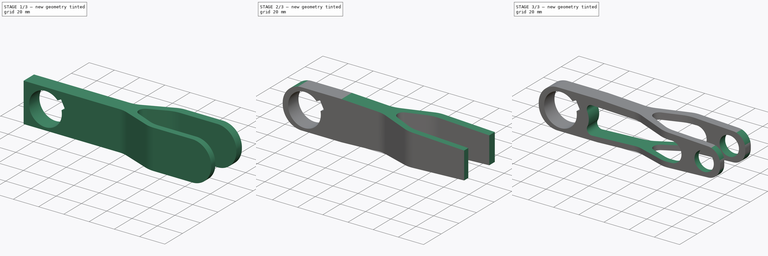
[diagram: build sequence overview — one tinted view per stage of 3, left to right]
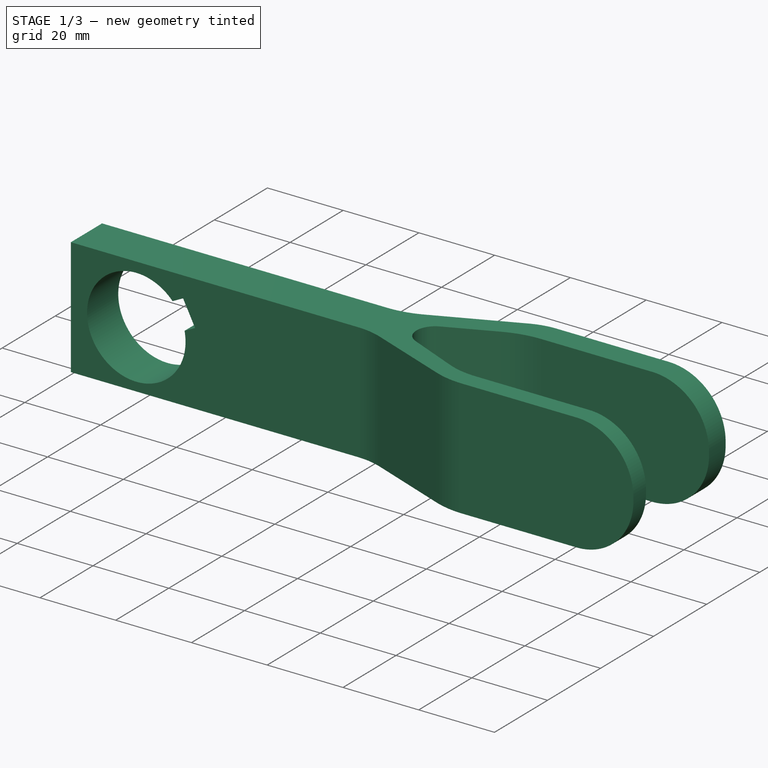
[diagram: stage 1 of 3 — iso view after this stage's code; geometry added in this stage tinted green]
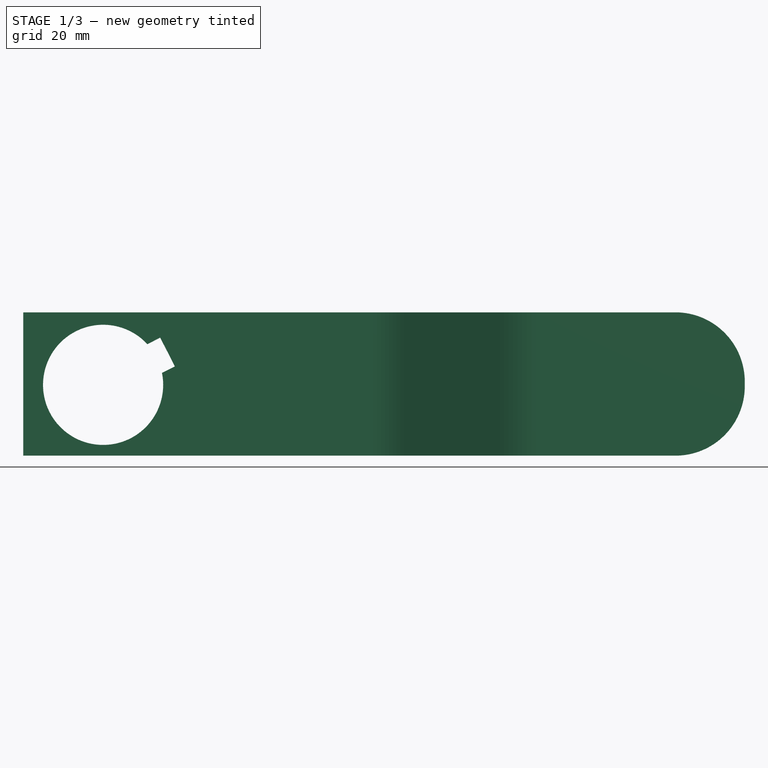
[diagram: stage 1 of 3 — front view after this stage's code; geometry added in this stage tinted green]
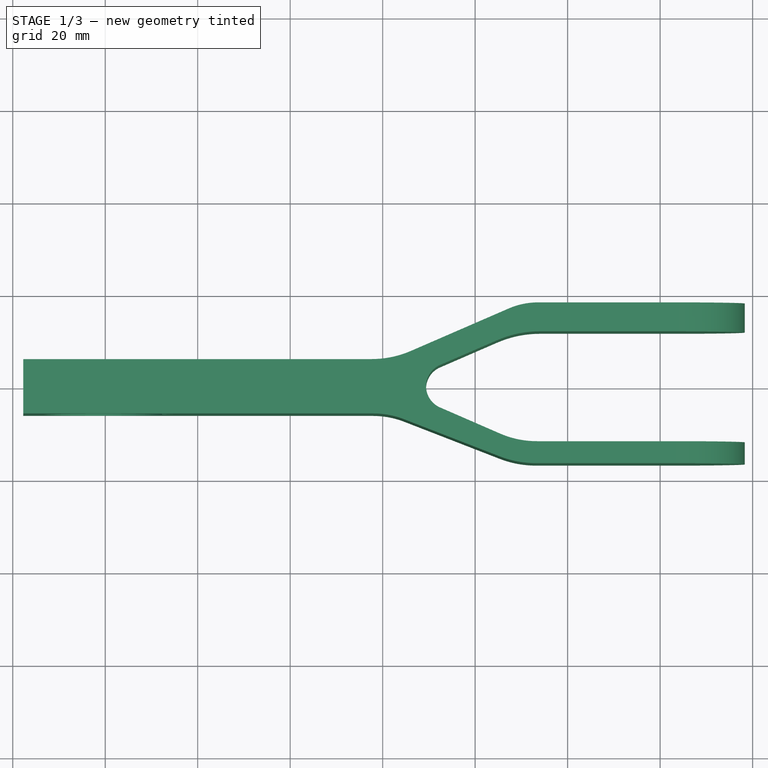
[diagram: stage 1 of 3 — top view after this stage's code; geometry added in this stage tinted green]
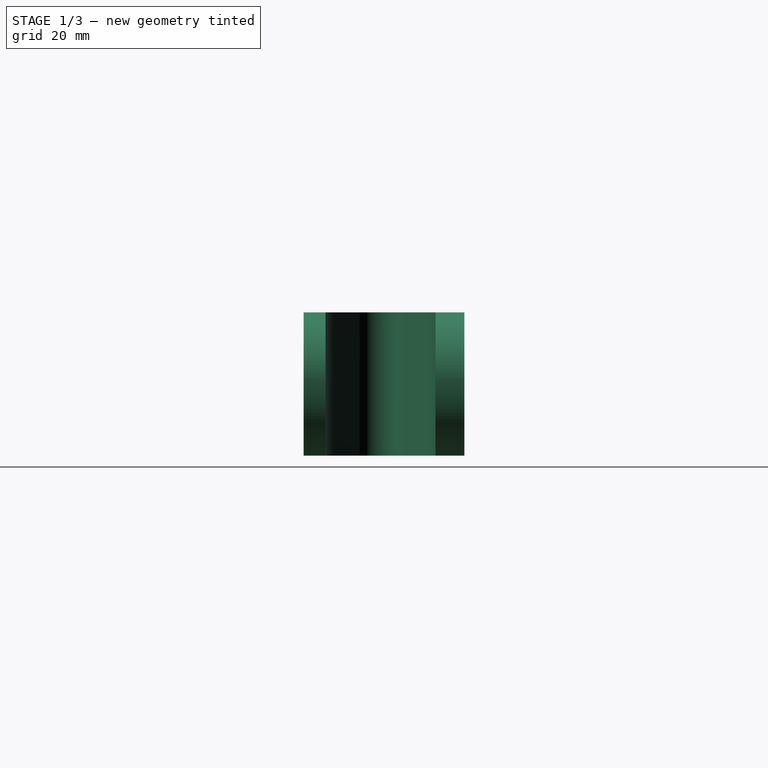
[diagram: stage 1 of 3 — right view after this stage's code; geometry added in this stage tinted green]
FCSTD DOCUMENT  (FreeCAD 0.21R33771 (Git))
Label: ex67
License: All rights reserved
LicenseURL: http://en.wikipedia.org/wiki/All_rights_reserved
objects: Sketcher::SketchObject×5, PartDesign::Pocket×4, PartDesign::Fillet×3, PartDesign::Pad×1, PartDesign::Body×1
note: 22 computed .brp shape members not serialized (recipe doc carries the construction recipe); baked Part::Feature solids carry a one-line shape summary decoded from their .brp

FEATURE [Sketcher::SketchObject] Sketch
  FullyConstrained = false
  MapMode = 5
  Support = -> [XY_Plane]
  sketch-geometry (23):
    g0: LineSegment StartX=17.5802 StartY=5.87487 StartZ=0 EndX=-57.7333 EndY=5.87487 EndZ=0
    g1: LineSegment StartX=-57.7333 StartY=5.87487 StartZ=0 EndX=-57.7333 EndY=-5.87883 EndZ=0
    g2: LineSegment StartX=-57.7333 StartY=-5.87883 StartZ=0 EndX=17.9148 EndY=-5.87883 EndZ=0
    g3: GeomPoint X=-17.6339 Y=0 Z=0
    g4: LineSegment StartX=53.6058 StartY=18.1433 StartZ=0 EndX=98.3002 EndY=18.1433 EndZ=0
    g5: LineSegment StartX=98.3002 StartY=18.1433 StartZ=0 EndX=98.3002 EndY=11.8841 EndZ=0
    g6: LineSegment StartX=98.3002 StartY=11.8841 StartZ=0 EndX=53.9743 EndY=11.8841 EndZ=0
    g7: GeomPoint X=73.7406 Y=15.0137 Z=0
    g8: LineSegment StartX=98.3069 StartY=-16.632 StartZ=0 EndX=98.3069 EndY=-11.8841 EndZ=0
    g9: LineSegment StartX=98.3069 StartY=-11.8841 StartZ=0 EndX=53.3359 EndY=-11.8841 EndZ=0
    g10: LineSegment StartX=53.1388 StartY=-16.632 StartZ=0 EndX=98.3069 EndY=-16.632 EndZ=0
    g11: GeomPoint X=73.7439 Y=-14.124 Z=0
    g12: LineSegment StartX=26.1318 StartY=7.65118 StartZ=0 EndX=47.2637 EndY=16.826 EndZ=0
    g13: LineSegment StartX=24.662 StartY=-7.14327 StartZ=0 EndX=45.3149 EndY=-15.1658 EndZ=0
    g14: LineSegment StartX=44.7842 StartY=9.97509 StartZ=0 EndX=32.3935 EndY=4.59546 EndZ=0
    g15: LineSegment StartX=32.3893 StartY=-4.57549 StartZ=0 EndX=45.3713 EndY=-10.2259 EndZ=0
    g16: ArcOfCircle CenterX=34.3847 CenterY=0.00907401 CenterZ=0 NormalX=0 NormalY=0 NormalZ=1 AngleXU=0 Radius=5 StartAngle=1.98041 EndAngle=4.30187
    g17: ArcOfCircle CenterX=53.9743 CenterY=-11.1923 CenterZ=0 NormalX=0 NormalY=0 NormalZ=1 AngleXU=0 Radius=23.0763 StartAngle=1.5708 EndAngle=1.98041
    g18: ArcOfCircle CenterX=53.3359 CenterY=8.07316 CenterZ=0 NormalX=0 NormalY=0 NormalZ=1 AngleXU=0 Radius=19.9572 StartAngle=4.30187 EndAngle=4.71239
    g19: ArcOfCircle CenterX=53.6058 CenterY=2.21856 CenterZ=0 NormalX=0 NormalY=0 NormalZ=1 AngleXU=0 Radius=15.9248 StartAngle=1.5708 EndAngle=1.98041
    g20: ArcOfCircle CenterX=53.1388 CenterY=4.9758 CenterZ=0 NormalX=0 NormalY=0 NormalZ=1 AngleXU=0 Radius=21.6078 StartAngle=4.34188 EndAngle=4.71239
    g21: ArcOfCircle CenterX=17.5802 CenterY=27.3477 CenterZ=0 NormalX=0 NormalY=0 NormalZ=1 AngleXU=0 Radius=21.4728 StartAngle=4.71239 EndAngle=5.122
    g22: ArcOfCircle CenterX=17.9148 CenterY=-24.5129 CenterZ=0 NormalX=0 NormalY=0 NormalZ=1 AngleXU=0 Radius=18.6341 StartAngle=1.20029 EndAngle=1.5708
  constraints (32):
    c: Coincident(g0,g1)
    c: Coincident(g1,g2)
    c: Horizontal(g0)
    c: Horizontal(g2)
    c: Vertical(g1)
    c: PointOnObject(g3,g-1)
    c: Coincident(g4,g5)
    c: Coincident(g5,g6)
    c: Horizontal(g4)
    c: Horizontal(g6)
    c: Vertical(g5)
    c: Coincident(g8,g9)
    c: Coincident(g10,g8)
    c: Horizontal(g9)
    c: Horizontal(g10)
    c: Vertical(g8)
    c: Parallel(g12,g14)
    c: Tangent(g14,g16) = -1.5708
    c: Tangent(g15,g16) = -1.5708
    c: Radius(g16) = 5
    c: Tangent(g14,g17) = -1.5708
    c: Tangent(g6,g17) = -1.5708
    c: Tangent(g15,g18) = -1.5708
    c: Tangent(g9,g18) = 1.5708
    c: Tangent(g12,g19) = 1.5708
    c: Tangent(g4,g19) = 1.5708
    c: Tangent(g13,g20) = -1.5708
    c: Tangent(g10,g20) = -1.5708
    c: Tangent(g0,g21) = 1.5708
    c: Tangent(g12,g21) = -1.5708
    c: Tangent(g2,g22) = 1.5708
    c: Tangent(g13,g22) = 1.5708
FEATURE [PartDesign::Pad] Pad
  Direction = (0,0,1)
  Length = 31
  Length2 = 10
  Profile = -> Sketch
  ReferenceAxis = -> Sketch [N_Axis]
  Refine = true
  Type = 0
FEATURE [PartDesign::Fillet] Fillet
  Base = -> Pad [Edge28,Edge52,Edge27,Edge51]
  BaseFeature = -> Pad
  Radius = 15
  Refine = true
  SupportTransform = false
  UseAllEdges = false
FEATURE [Sketcher::SketchObject] Sketch001
  AttachmentOffset = pos=(3,20,0) rot=(0,0,1;0.471239rad)
  FullyConstrained = false
  MapMode = 5
  Placement = pos=(3,-5.87883,20) rot=(0.94691,-0.227333,0.227333;1.62532rad)
  Support = -> [Fillet]
  sketch-geometry (5):
    g0: ArcOfCircle CenterX=-40.8486 CenterY=15.5574 CenterZ=0 NormalX=0 NormalY=0 NormalZ=1 AngleXU=0 Radius=12.9954 StartAngle=0.272227 EndAngle=6.01096
    g1: LineSegment StartX=-25.208 StartY=19.0516 StartZ=0 EndX=-25.208 EndY=12.0632 EndZ=0
    g2: GeomPoint X=-40.8486 Y=15.5574 Z=0
    g3: LineSegment StartX=-28.3317 StartY=19.0516 StartZ=0 EndX=-25.208 EndY=19.0516 EndZ=0
    g4: LineSegment StartX=-25.208 StartY=12.0632 StartZ=0 EndX=-28.3317 EndY=12.0632 EndZ=0
  constraints (8):
    c: Coincident(g3,g1)
    c: Coincident(g1,g4)
    c: Vertical(g1)
    c: Coincident(g2,g0)
    c: Horizontal(g3)
    c: Horizontal(g4)
    c: Coincident(g0,g4)
    c: Coincident(g0,g3)
FEATURE [PartDesign::Pocket] Pocket
  BaseFeature = -> Fillet
  Direction = (1e-16,1,-2e-16)
  Length = 5
  Length2 = 5
  Profile = -> Sketch001
  ReferenceAxis = -> Sketch001 [N_Axis]
  Refine = true
  Type = 1
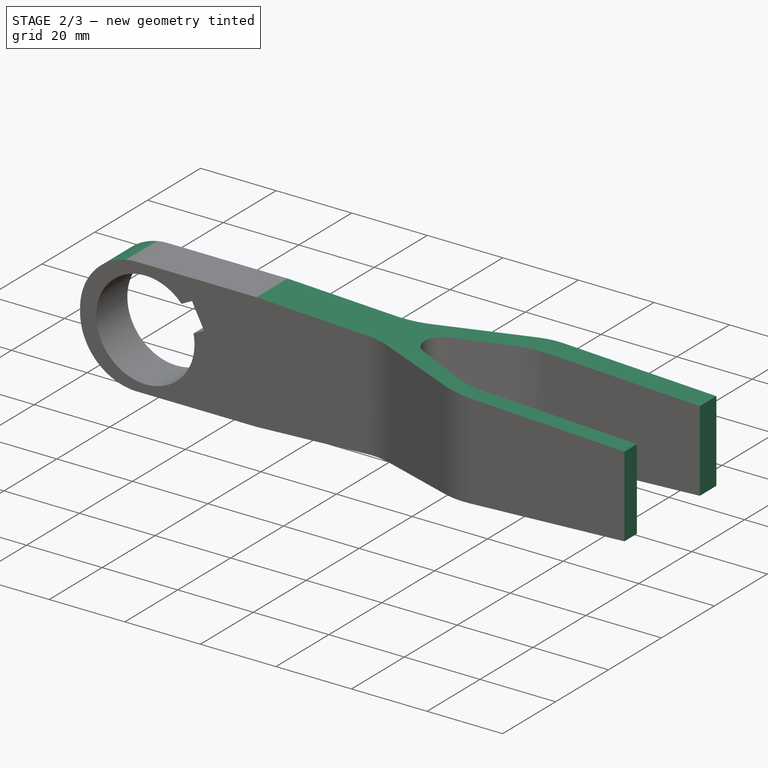
[diagram: stage 2 of 3 — iso view after this stage's code; geometry added in this stage tinted green]
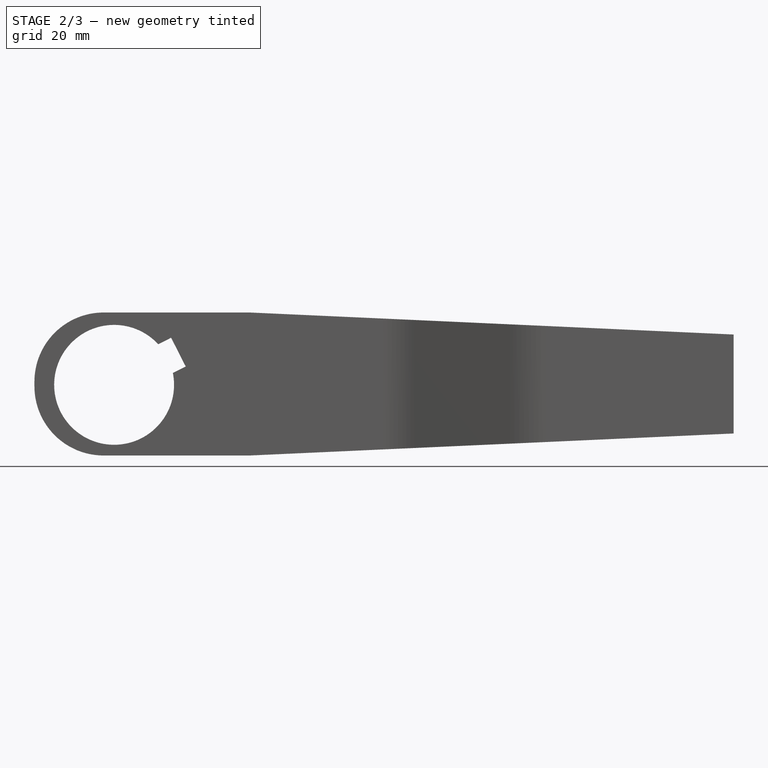
[diagram: stage 2 of 3 — front view after this stage's code; geometry added in this stage tinted green]
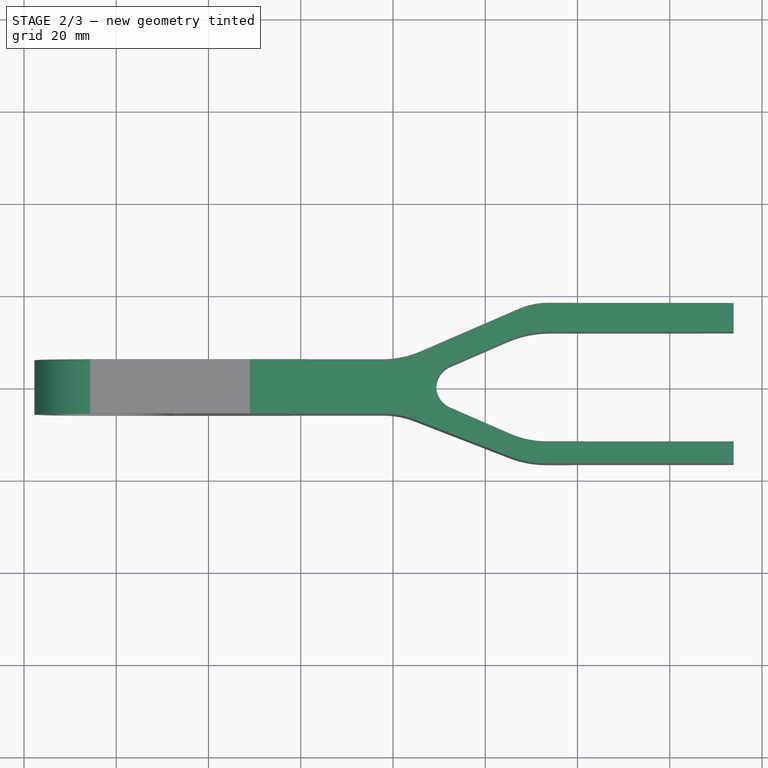
[diagram: stage 2 of 3 — top view after this stage's code; geometry added in this stage tinted green]
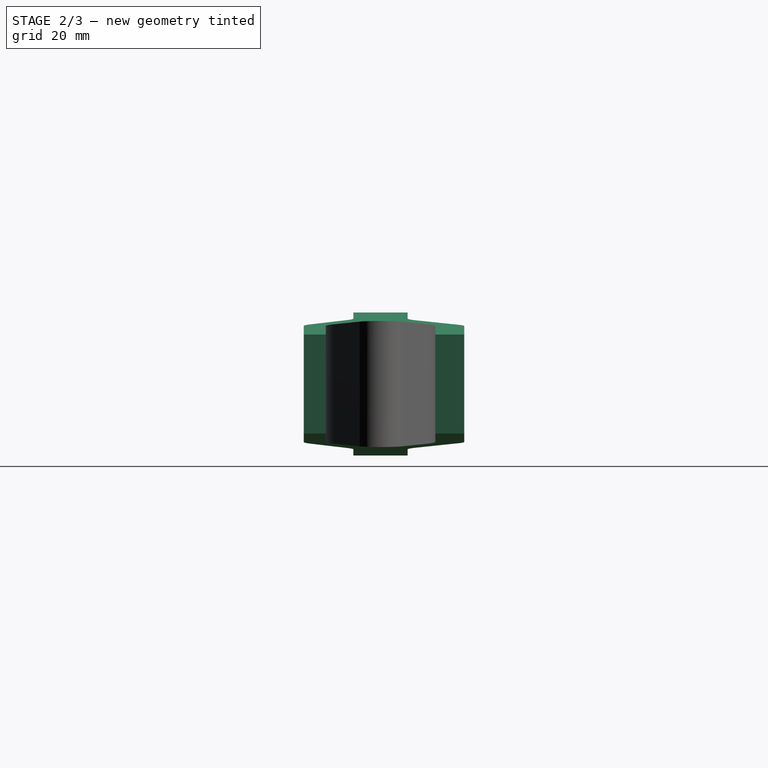
[diagram: stage 2 of 3 — right view after this stage's code; geometry added in this stage tinted green]
FEATURE [PartDesign::Fillet] Fillet001
  Base = -> Pocket [Edge40,Edge22]
  BaseFeature = -> Pocket
  Radius = 15
  Refine = true
  SupportTransform = false
  UseAllEdges = false
FEATURE [Sketcher::SketchObject] Sketch002
  FullyConstrained = false
  MapMode = 5
  Placement = pos=(0,0,0) rot=(1,0,0;1.5708rad)
  Support = -> [XZ_Plane]
  sketch-geometry (9):
    g0: LineSegment StartX=-48.1325 StartY=32.6879 StartZ=0 EndX=93.8323 EndY=26.2278 EndZ=0
    g1: LineSegment StartX=-48.1325 StartY=32.6879 StartZ=0 EndX=-48.1325 EndY=64.0375 EndZ=0
    g2: LineSegment StartX=-48.1325 StartY=64.0375 StartZ=0 EndX=136.738 EndY=64.0375 EndZ=0
    g3: LineSegment StartX=93.8323 StartY=26.2278 StartZ=0 EndX=93.8323 EndY=4.77216 EndZ=0
    g4: LineSegment StartX=93.8323 StartY=4.77216 StartZ=0 EndX=-48.1325 EndY=-1.68789 EndZ=0
    g5: LineSegment StartX=-48.1325 StartY=-1.68789 StartZ=0 EndX=-48.1325 EndY=-33.0375 EndZ=0
    g6: LineSegment StartX=-48.1325 StartY=-33.0375 StartZ=0 EndX=136.738 EndY=-33.0375 EndZ=0
    g7: LineSegment StartX=136.738 StartY=64.0375 StartZ=0 EndX=136.738 EndY=-33.0375 EndZ=0
    g8: LineSegment StartX=-67.9332 StartY=15.5 StartZ=0 EndX=129.374 EndY=15.5 EndZ=0
  constraints (18):
    c: Vertical(g1)
    c: Coincident(g2,g1)
    c: Horizontal(g2)
    c: Coincident(g5,g4)
    c: Coincident(g6,g5)
    c: Horizontal(g6)
    c: Coincident(g7,g2)
    c: Coincident(g7,g6)
    c: Vertical(g5)
    c: Vertical(g7)
    c: Coincident(g4,g3)
    c: Equal(g1,g5)
    c: DistanceY(g-1,g8) = 15.5
    c: Coincident(g1,g0)
    c: Symmetric(g0,g4,g8)
    c: Coincident(g0,g3)
    c: Vertical(g3)
    c: Symmetric(g0,g3,g8)
FEATURE [PartDesign::Pocket] Pocket001
  BaseFeature = -> Fillet001
  Direction = (0,1,-2e-16)
  Length = 5
  Length2 = 5
  Midplane = true
  Profile = -> Sketch002
  ReferenceAxis = -> Sketch002 [N_Axis]
  Refine = true
  Type = 1
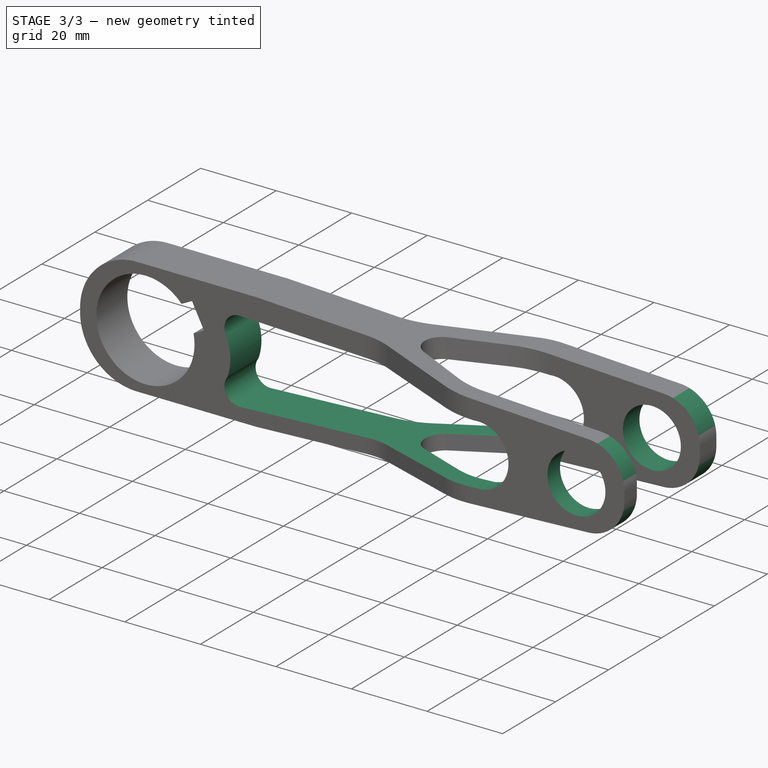
[diagram: stage 3 of 3 — iso view after this stage's code; geometry added in this stage tinted green]
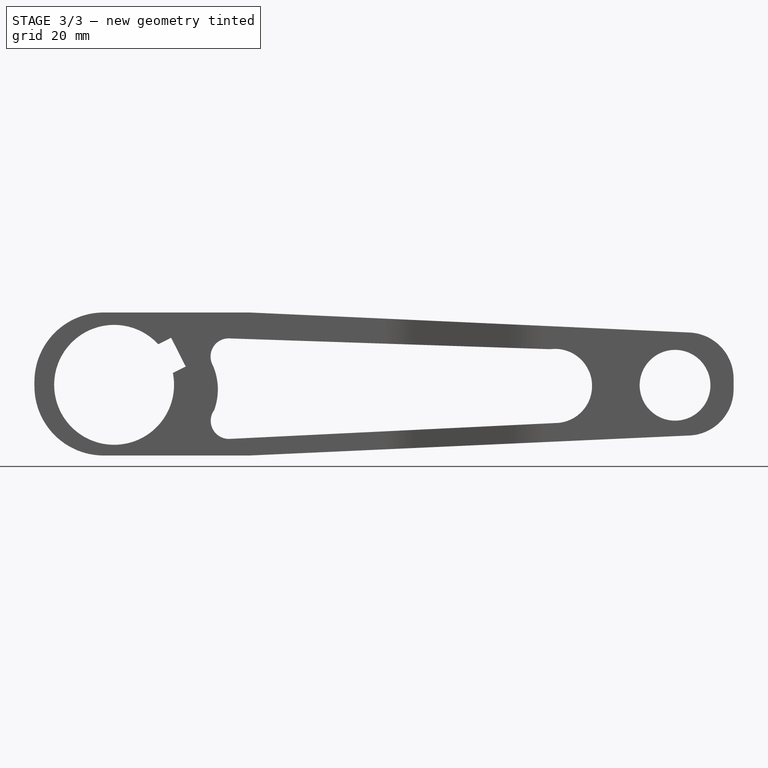
[diagram: stage 3 of 3 — front view after this stage's code; geometry added in this stage tinted green]
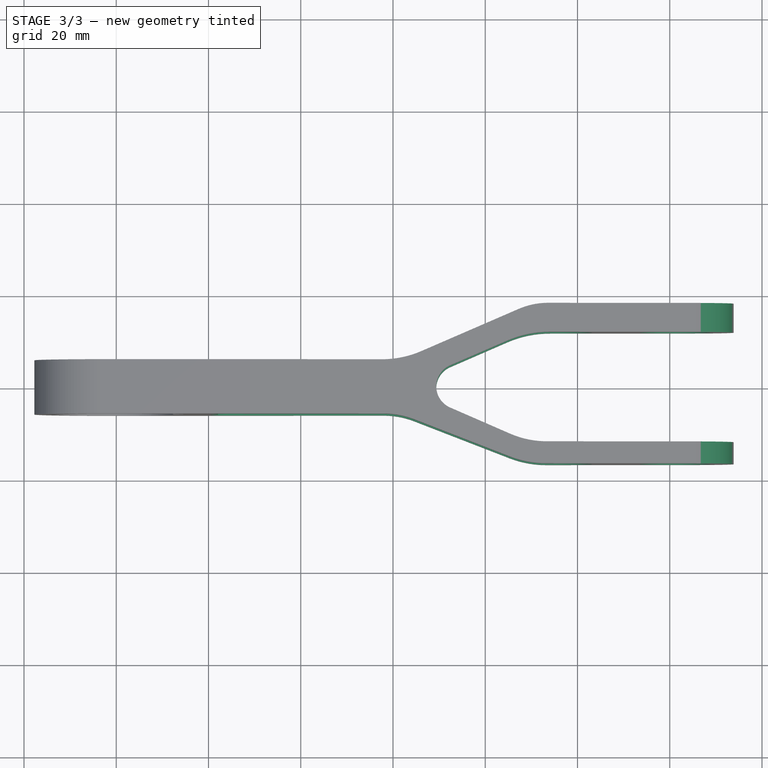
[diagram: stage 3 of 3 — top view after this stage's code; geometry added in this stage tinted green]
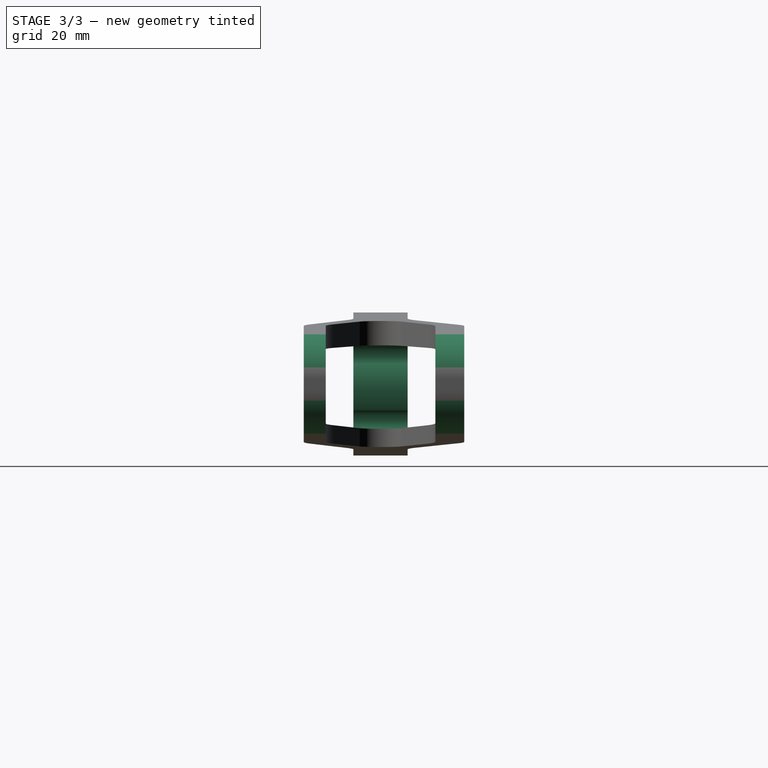
[diagram: stage 3 of 3 — right view after this stage's code; geometry added in this stage tinted green]
FEATURE [PartDesign::Fillet] Fillet002
  Base = -> Pocket001 [Edge56,Edge48,Edge27,Edge35]
  BaseFeature = -> Pocket001
  Radius = 10
  Refine = true
  SupportTransform = false
  UseAllEdges = false
FEATURE [Sketcher::SketchObject] Sketch003
  FullyConstrained = false
  MapMode = 5
  Placement = pos=(0,0,0) rot=(1,0,0;1.5708rad)
  Support = -> [XZ_Plane]
  sketch-geometry (1):
    g0: Circle CenterX=81.1425 CenterY=15.2263 CenterZ=0 NormalX=0 NormalY=0 NormalZ=1 AngleXU=0 Radius=7.67017
FEATURE [PartDesign::Pocket] Pocket002
  BaseFeature = -> Fillet002
  Direction = (0,1,-2e-16)
  Length = 5
  Length2 = 5
  Midplane = true
  Profile = -> Sketch003
  ReferenceAxis = -> Sketch003 [N_Axis]
  Refine = true
  Type = 1
FEATURE [Sketcher::SketchObject] Sketch004
  FullyConstrained = false
  MapMode = 5
  Placement = pos=(0,0,0) rot=(1,0,0;1.5708rad)
  Support = -> [XZ_Plane]
  sketch-geometry (6):
    g0: ArcOfCircle CenterX=-15.6168 CenterY=21.459 CenterZ=0 NormalX=0 NormalY=0 NormalZ=1 AngleXU=0 Radius=3.93231 StartAngle=1.48279 EndAngle=3.63362
    g1: ArcOfCircle CenterX=-15.5818 CenterY=7.52879 CenterZ=0 NormalX=0 NormalY=0 NormalZ=1 AngleXU=0 Radius=3.93231 StartAngle=2.51469 EndAngle=4.76106
    g2: ArcOfCircle CenterX=-30.9735 CenterY=14.3283 CenterZ=0 NormalX=0 NormalY=0 NormalZ=1 AngleXU=0 Radius=13.0075 StartAngle=5.93053 EndAngle=6.70058
    g3: ArcOfCircle CenterX=55.1199 CenterY=15.0739 CenterZ=0 NormalX=0 NormalY=0 NormalZ=1 AngleXU=0 Radius=8.0364 StartAngle=4.71811 EndAngle=7.9829
    g4: LineSegment StartX=-15.2712 StartY=25.3761 StartZ=0 EndX=54.0868 EndY=23.0436 EndZ=0
    g5: LineSegment StartX=-15.3905 StartY=3.60114 StartZ=0 EndX=55.1659 EndY=7.03766 EndZ=0
  constraints (7):
    c: Equal(g1,g0)
    c: Tangent(g1,g5) = -1.5708
    c: Coincident(g0,g4)
    c: Coincident(g3,g4)
    c: Coincident(g3,g5)
    c: Coincident(g2,g1)
    c: Coincident(g2,g0)
FEATURE [PartDesign::Pocket] Pocket003
  BaseFeature = -> Pocket002
  Direction = (0,1,-2e-16)
  Length = 5
  Length2 = 5
  Midplane = true
  Profile = -> Sketch004
  ReferenceAxis = -> Sketch004 [N_Axis]
  Refine = true
  Type = 1
FEATURE [PartDesign::Body] Body
  Group = -> [Sketch,Pad,Fillet,Sketch001,Pocket,Fillet001,Sketch002,Pocket001,Fillet002,Sketch003,Pocket002,Sketch004,Pocket003]
  Origin = -> Origin
  Tip = -> Pocket003
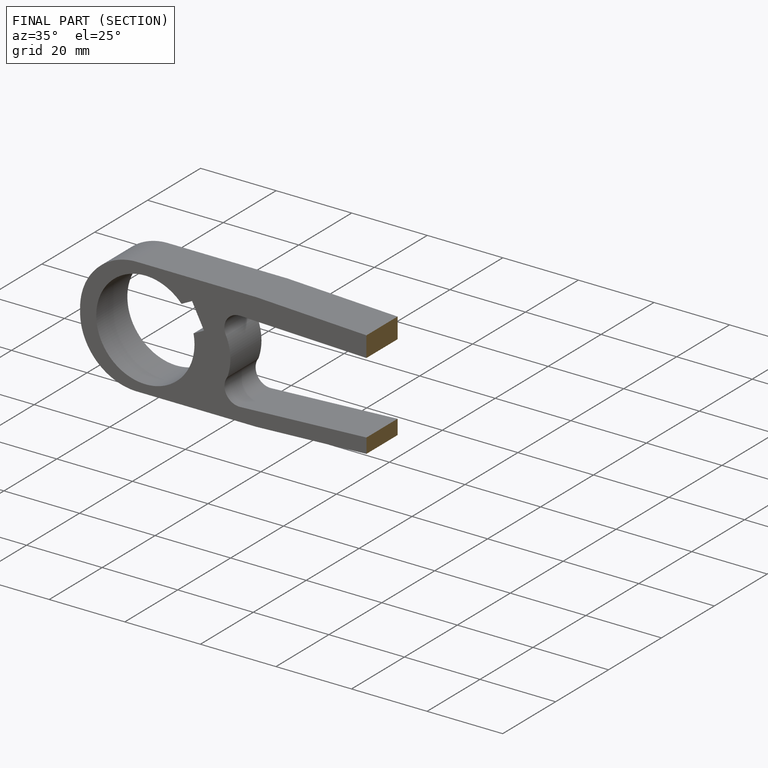
[diagram: finished part — half-section view (interior)]
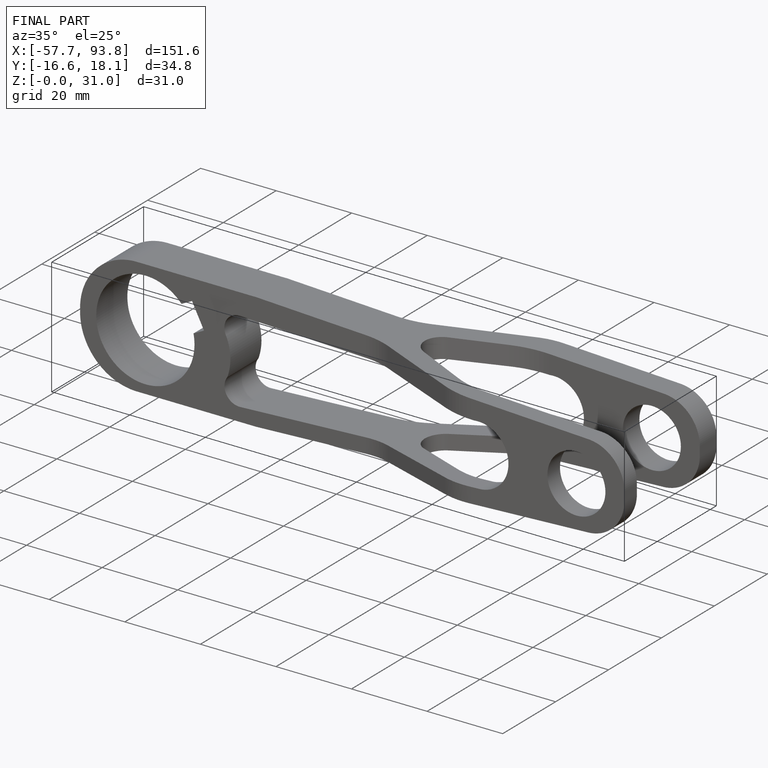
[diagram: finished part — iso view with bounding-box wireframe]
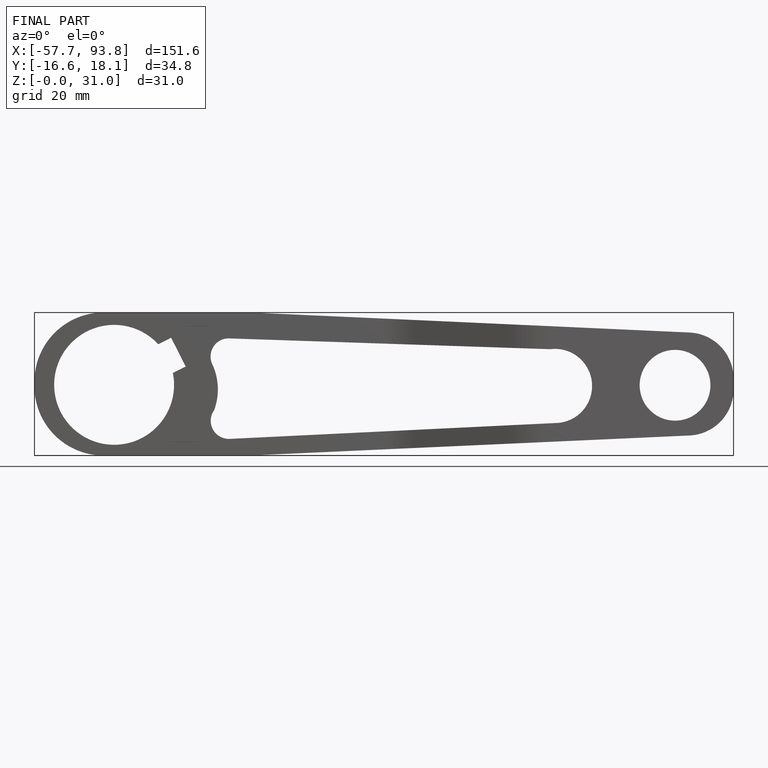
[diagram: finished part — front view with bounding-box wireframe]
